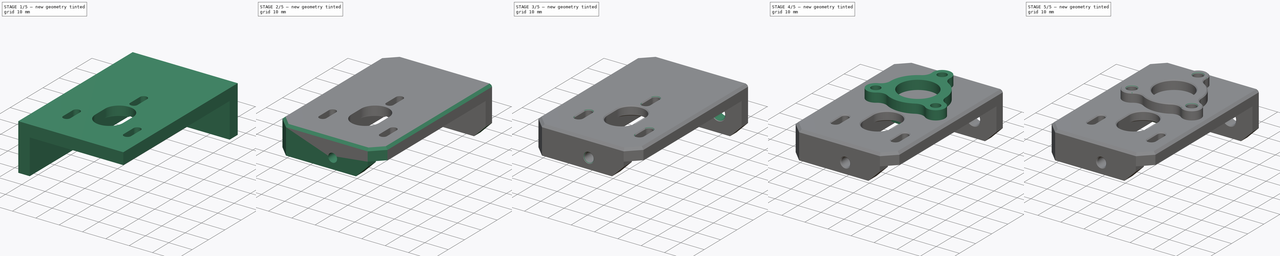
[diagram: build sequence overview — one tinted view per stage of 5, left to right]
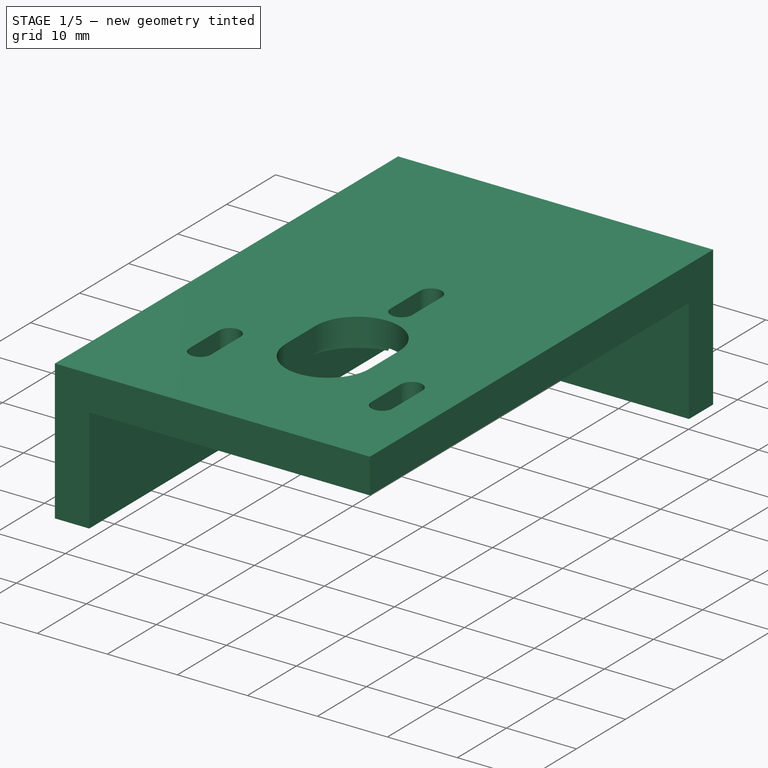
[diagram: stage 1 of 5 — iso view after this stage's code; geometry added in this stage tinted green]
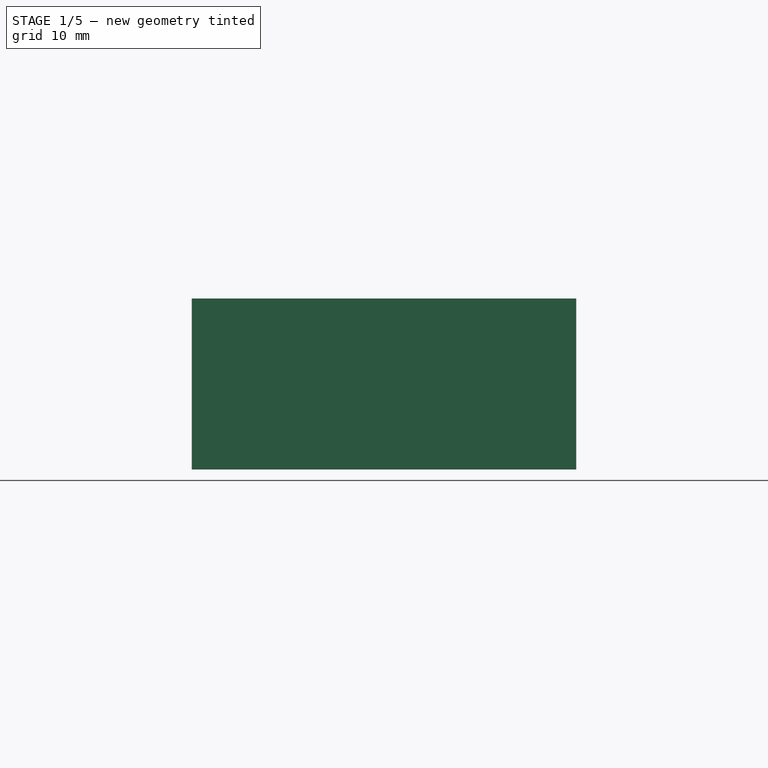
[diagram: stage 1 of 5 — front view after this stage's code; geometry added in this stage tinted green]
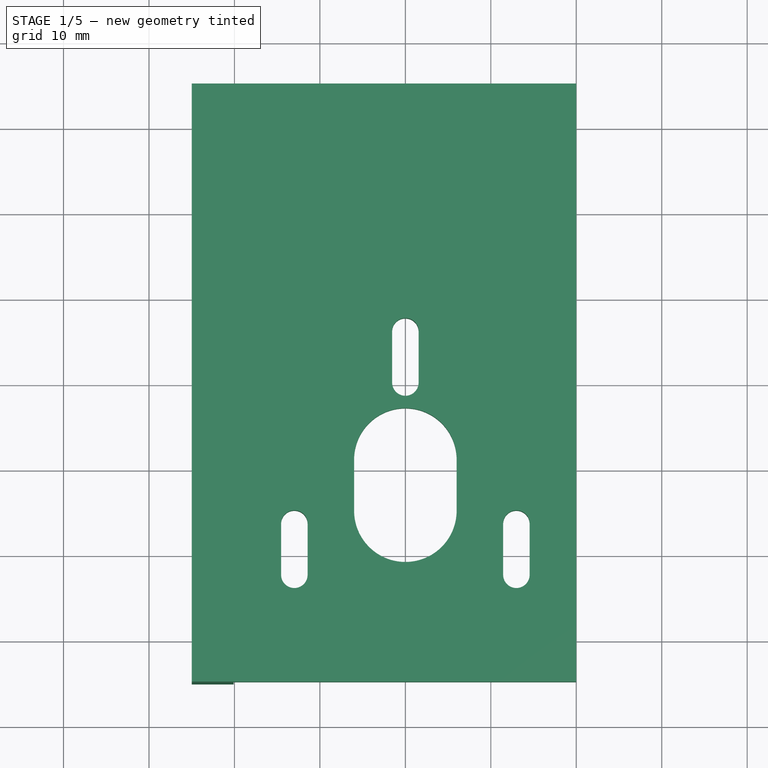
[diagram: stage 1 of 5 — top view after this stage's code; geometry added in this stage tinted green]
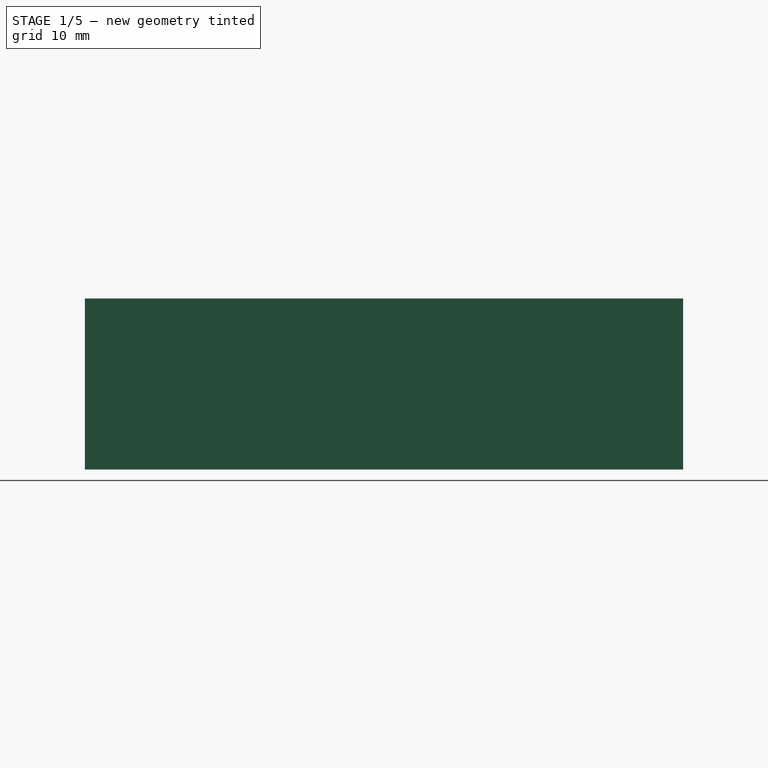
[diagram: stage 1 of 5 — right view after this stage's code; geometry added in this stage tinted green]
FCSTD DOCUMENT  (FreeCAD 0.19R24366 (Git))
Label: top-bearing-holder
License: All rights reserved
LicenseURL: http://en.wikipedia.org/wiki/All_rights_reserved
objects: Sketcher::SketchObject×13, PartDesign::Pocket×9, PartDesign::Chamfer×6, PartDesign::Pad×4, PartDesign::Body×2, PartDesign::Fillet×1, Part::FeaturePython×1, Part::Chamfer×1
note: 57 computed .brp shape members not serialized (recipe doc carries the construction recipe); baked Part::Feature solids carry a one-line shape summary decoded from their .brp

FEATURE [Sketcher::SketchObject] Sketch004
  FullyConstrained = true
  MapMode = 5
  Support = -> [XY_Plane001]
  sketch-geometry (4):
    g0: LineSegment StartX=-25 StartY=25 StartZ=0 EndX=20 EndY=25 EndZ=0
    g1: LineSegment StartX=20 StartY=25 StartZ=0 EndX=20 EndY=-45 EndZ=0
    g2: LineSegment StartX=20 StartY=-45 StartZ=0 EndX=-25 EndY=-45 EndZ=0
    g3: LineSegment StartX=-25 StartY=-45 StartZ=0 EndX=-25 EndY=25 EndZ=0
  constraints (12):
    c: Coincident(g0,g1)
    c: Coincident(g1,g2)
    c: Coincident(g2,g3)
    c: Coincident(g3,g0)
    c: Horizontal(g0)
    c: Horizontal(g2)
    c: Vertical(g1)
    c: Vertical(g3)
    c: DistanceX(g0,g0) = 45
    c: DistanceX(g0,g-1) = 25
    c: DistanceY(g-1,g0) = 25
    c: DistanceY(g3,g3) = 70
FEATURE [PartDesign::Pad] Pad001
  Direction = (1,1,1)
  Length = 5
  Length2 = 100
  Profile = -> Sketch004
  Type = 0
FEATURE [Sketcher::SketchObject] Sketch005
  FullyConstrained = true
  MapMode = 5
  Placement = pos=(0,0,0) rot=(1,0,0;3.14159rad)
  Support = -> [Pad001]
  sketch-geometry (21):
    g0: GeomPoint X=0 Y=22 Z=0
    g1: Circle CenterX=0 CenterY=22 CenterZ=0 NormalX=0 NormalY=0 NormalZ=1 AngleXU=0 Radius=15
    g2: LineSegment StartX=0 StartY=22 StartZ=0 EndX=-12.9904 EndY=29.5 EndZ=0
    g3: LineSegment StartX=0 StartY=22 StartZ=0 EndX=12.9904 EndY=29.5 EndZ=0
    g4: LineSegment StartX=0 StartY=22 StartZ=0 EndX=0 EndY=7 EndZ=0
    g5: ArcOfCircle CenterX=-12.9904 CenterY=32.5 CenterZ=0 NormalX=0 NormalY=0 NormalZ=1 AngleXU=0 Radius=1.55 StartAngle=-1.8e-15 EndAngle=3.14159
    g6: ArcOfCircle CenterX=-12.9904 CenterY=26.5 CenterZ=0 NormalX=0 NormalY=0 NormalZ=1 AngleXU=0 Radius=1.55 StartAngle=3.14159 EndAngle=6.28319
    g7: LineSegment StartX=-14.5404 StartY=32.5 StartZ=0 EndX=-14.5404 EndY=26.5 EndZ=0
    g8: LineSegment StartX=-11.4404 StartY=32.5 StartZ=0 EndX=-11.4404 EndY=26.5 EndZ=0
    g9: ArcOfCircle CenterX=12.9904 CenterY=32.5 CenterZ=0 NormalX=0 NormalY=0 NormalZ=1 AngleXU=0 Radius=1.55 StartAngle=2.1e-15 EndAngle=3.14159
    g10: ArcOfCircle CenterX=12.9904 CenterY=26.5 CenterZ=0 NormalX=0 NormalY=0 NormalZ=1 AngleXU=0 Radius=1.55 StartAngle=3.14159 EndAngle=6.28319
    g11: LineSegment StartX=11.4404 StartY=32.5 StartZ=0 EndX=11.4404 EndY=26.5 EndZ=0
    g12: LineSegment StartX=14.5404 StartY=32.5 StartZ=0 EndX=14.5404 EndY=26.5 EndZ=0
    g13: ArcOfCircle CenterX=0 CenterY=10 CenterZ=0 NormalX=0 NormalY=0 NormalZ=1 AngleXU=0 Radius=1.55 StartAngle=4e-16 EndAngle=3.14159
    g14: ArcOfCircle CenterX=2e-16 CenterY=4 CenterZ=0 NormalX=0 NormalY=0 NormalZ=1 AngleXU=0 Radius=1.55 StartAngle=3.14159 EndAngle=6.28319
    g15: LineSegment StartX=-1.55 StartY=10 StartZ=0 EndX=-1.55 EndY=4 EndZ=0
    g16: LineSegment StartX=1.55 StartY=10 StartZ=0 EndX=1.55 EndY=4 EndZ=0
    g17: ArcOfCircle CenterX=0 CenterY=25 CenterZ=0 NormalX=0 NormalY=0 NormalZ=1 AngleXU=0 Radius=6 StartAngle=0 EndAngle=3.14159
    g18: ArcOfCircle CenterX=2e-16 CenterY=19 CenterZ=0 NormalX=0 NormalY=0 NormalZ=1 AngleXU=0 Radius=6 StartAngle=3.14159 EndAngle=6.28319
    g19: LineSegment StartX=-6 StartY=25 StartZ=0 EndX=-6 EndY=19 EndZ=0
    g20: LineSegment StartX=6 StartY=25 StartZ=0 EndX=6 EndY=19 EndZ=0
  constraints (53):
    c: PointOnObject(g0,g-2)
    c: DistanceY(g-1,g0) = 22
    c: Coincident(g1,g0)
    c: Radius(g1) = 15
    c: Coincident(g2,g0)
    c: PointOnObject(g2,g1)
    c: Coincident(g3,g0)
    c: PointOnObject(g3,g1)
    c: Coincident(g4,g0)
    c: PointOnObject(g4,g1)
    c: Vertical(g4)
    c: Angle(g2,g4) = 2.0944
    c: Angle(g4,g3) = 2.0944
    c: Tangent(g5,g8) = 1.5708
    c: Tangent(g5,g7) = -1.5708
    c: Tangent(g7,g6) = -1.5708
    c: Tangent(g8,g6) = 1.5708
    c: Vertical(g7)
    c: Equal(g5,g6)
    c: Tangent(g9,g12) = 1.5708
    c: Tangent(g9,g11) = -1.5708
    c: Tangent(g11,g10) = -1.5708
    c: Tangent(g12,g10) = 1.5708
    c: Vertical(g11)
    c: Equal(g9,g10)
    c: Tangent(g13,g16) = 1.5708
    c: Tangent(g13,g15) = -1.5708
    c: Tangent(g15,g14) = -1.5708
    c: Tangent(g16,g14) = 1.5708
    c: Vertical(g15)
    c: Equal(g13,g14)
    c: Tangent(g17,g20) = 1.5708
    c: Tangent(g17,g19) = -1.5708
    c: Tangent(g19,g18) = -1.5708
    c: Tangent(g20,g18) = 1.5708
    c: Vertical(g19)
    c: Equal(g17,g18)
    c: Vertical(g13,g4)
    c: Vertical(g5,g2)
    c: Vertical(g9,g3)
    c: Equal(g5,g9)
    c: Equal(g9,g13)
    c: Vertical(g17,g0)
    c: DistanceY(g2,g5) = 3
    c: DistanceY(g6,g2) = 3
    c: DistanceY(g3,g9) = 3
    c: DistanceY(g10,g3) = 3
    c: DistanceY(g0,g17) = 3
    c: DistanceY(g18,g0) = 3
    c: DistanceY(g4,g13) = 3
    c: DistanceY(g14,g4) = 3
    c: Radius(g5) = 1.55
    c: Radius(g17) = 6
FEATURE [PartDesign::Pocket] Pocket003
  BaseFeature = -> Pad001
  Length = 5
  Length2 = 100
  Profile = -> Sketch005
  Type = 1
FEATURE [Sketcher::SketchObject] Sketch006
  FullyConstrained = true
  MapMode = 5
  Placement = pos=(0,0,0) rot=(1,0,0;3.14159rad)
  Support = -> [Pocket003]
  sketch-geometry (5):
    g0: GeomPoint X=0 Y=22 Z=0
    g1: ArcOfCircle CenterX=0 CenterY=25 CenterZ=0 NormalX=0 NormalY=0 NormalZ=1 AngleXU=0 Radius=8.1 StartAngle=-2.04e-14 EndAngle=3.14159
    g2: ArcOfCircle CenterX=9e-16 CenterY=19 CenterZ=0 NormalX=0 NormalY=0 NormalZ=1 AngleXU=0 Radius=8.1 StartAngle=3.14159 EndAngle=6.28319
    g3: LineSegment StartX=-8.1 StartY=25 StartZ=0 EndX=-8.1 EndY=19 EndZ=0
    g4: LineSegment StartX=8.1 StartY=25 StartZ=0 EndX=8.1 EndY=19 EndZ=0
  constraints (12):
    c: PointOnObject(g0,g-2)
    c: DistanceY(g-1,g0) = 22
    c: Tangent(g1,g4) = 1.5708
    c: Tangent(g1,g3) = -1.5708
    c: Tangent(g3,g2) = -1.5708
    c: Tangent(g4,g2) = 1.5708
    c: Vertical(g3)
    c: Equal(g1,g2)
    c: Vertical(g0,g1)
    c: Radius(g1) = 8.1
    c: DistanceY(g0,g1) = 3
    c: DistanceY(g2,g0) = 3
FEATURE [PartDesign::Pocket] Pocket004
  BaseFeature = -> Pocket003
  Length = 1.5
  Length2 = 100
  Profile = -> Sketch006
  Type = 0
FEATURE [Sketcher::SketchObject] Sketch007
  ExternalGeometry = -> [Pocket004]
  FullyConstrained = true
  MapMode = 5
  Placement = pos=(0,0,0) rot=(1,0,0;3.14159rad)
  Support = -> [Pocket004]
  sketch-geometry (6):
    g0: LineSegment StartX=-25 StartY=45 StartZ=0 EndX=-20.1 EndY=45 EndZ=0
    g1: LineSegment StartX=-20.1 StartY=45 StartZ=0 EndX=-20.1 EndY=-20.1 EndZ=0
    g2: LineSegment StartX=-20.1 StartY=-20.1 StartZ=0 EndX=20 EndY=-20.1 EndZ=0
    g3: LineSegment StartX=20 StartY=-20.1 StartZ=0 EndX=20 EndY=-25 EndZ=0
    g4: LineSegment StartX=20 StartY=-25 StartZ=0 EndX=-25 EndY=-25 EndZ=0
    g5: LineSegment StartX=-25 StartY=-25 StartZ=0 EndX=-25 EndY=45 EndZ=0
  constraints (15):
    c: Coincident(g-3,g0)
    c: Horizontal(g0)
    c: Coincident(g0,g1)
    c: Vertical(g1)
    c: Coincident(g1,g2)
    c: Horizontal(g2)
    c: Coincident(g2,g3)
    c: Coincident(g3,g-4)
    c: Vertical(g3)
    c: Coincident(g3,g4)
    c: Coincident(g4,g-4)
    c: Coincident(g4,g5)
    c: Coincident(g5,g0)
    c: DistanceX(g0,g0) = 4.9
    c: DistanceY(g3,g3) = 4.9
FEATURE [PartDesign::Pad] Pad002
  BaseFeature = -> Pocket004
  Direction = (1,1,1)
  Length = 15
  Length2 = 100
  Profile = -> Sketch007
  Type = 0
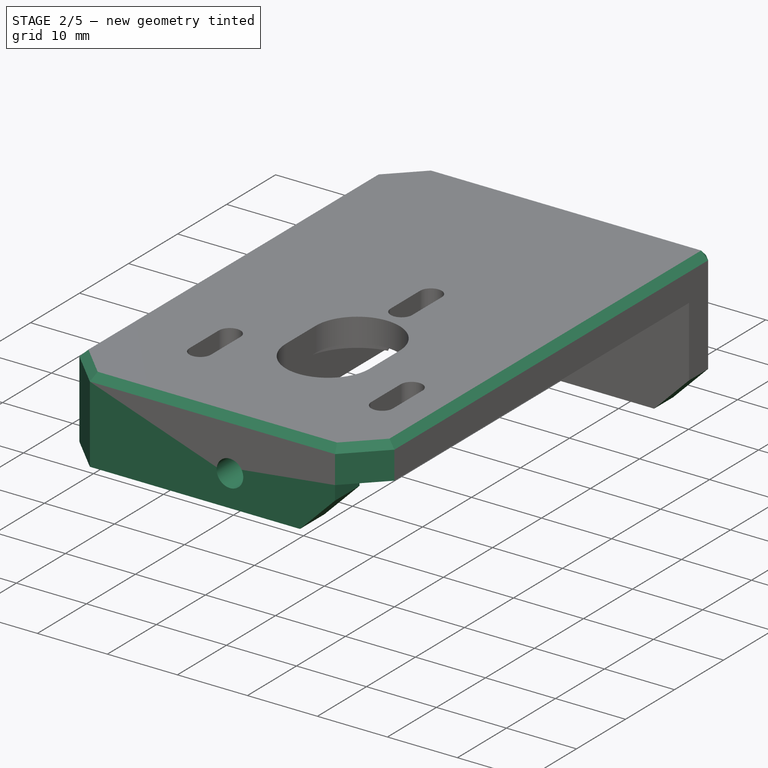
[diagram: stage 2 of 5 — iso view after this stage's code; geometry added in this stage tinted green]
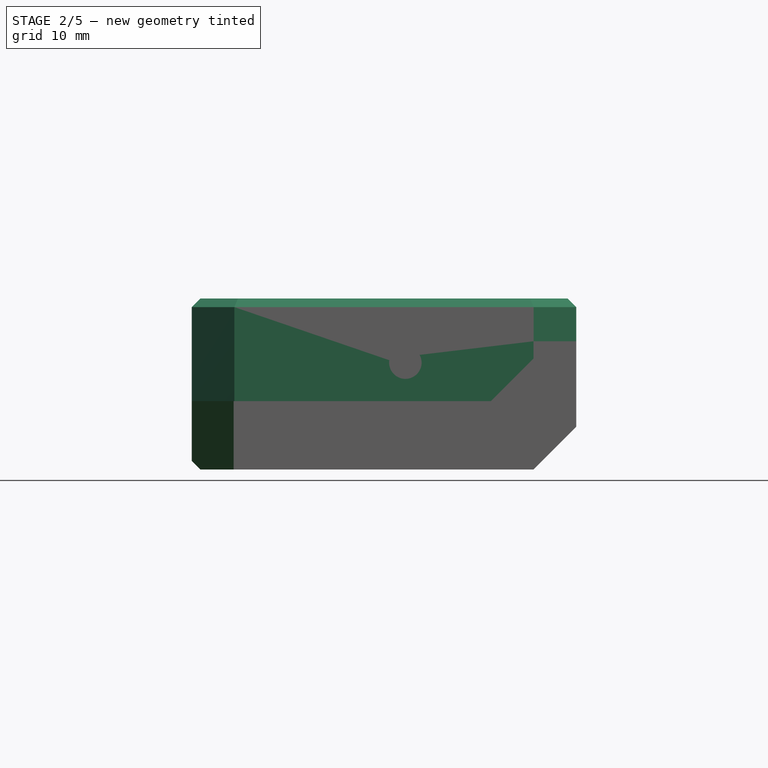
[diagram: stage 2 of 5 — front view after this stage's code; geometry added in this stage tinted green]
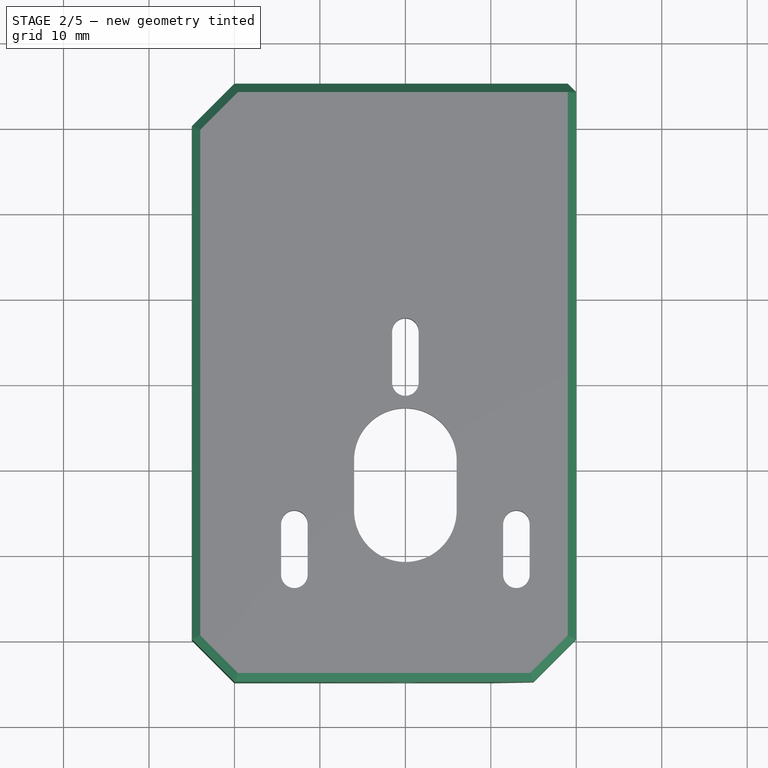
[diagram: stage 2 of 5 — top view after this stage's code; geometry added in this stage tinted green]
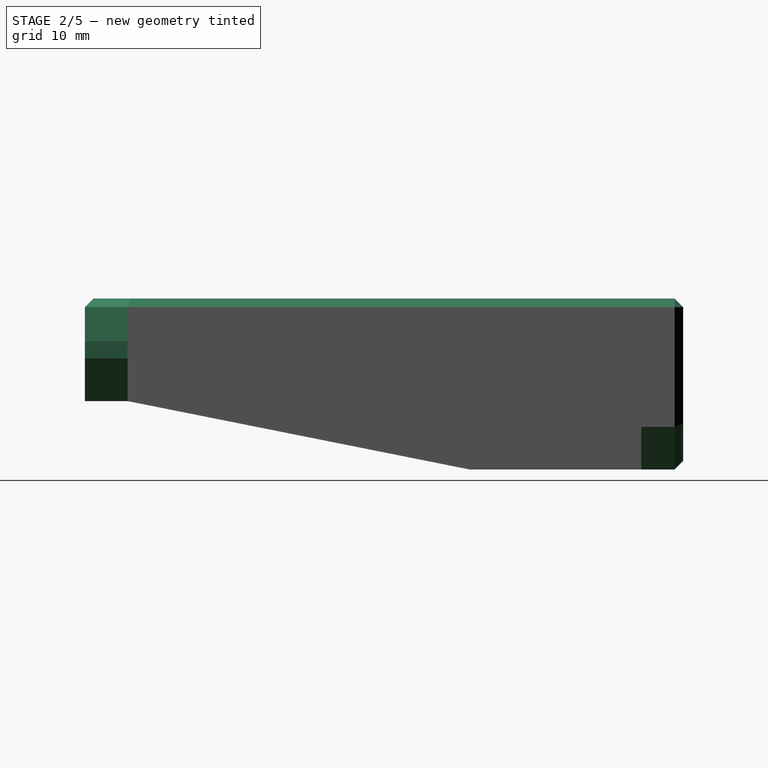
[diagram: stage 2 of 5 — right view after this stage's code; geometry added in this stage tinted green]
FEATURE [Sketcher::SketchObject] Sketch008
  ExternalGeometry = -> [Pad002]
  FullyConstrained = true
  MapMode = 5
  Placement = pos=(0,0,0) rot=(1,0,0;3.14159rad)
  Support = -> [Pad002]
  sketch-geometry (4):
    g0: LineSegment StartX=-20.1 StartY=45 StartZ=0 EndX=15 EndY=45 EndZ=0
    g1: LineSegment StartX=15 StartY=45 StartZ=0 EndX=15 EndY=40 EndZ=0
    g2: LineSegment StartX=15 StartY=40 StartZ=0 EndX=-20.1 EndY=40 EndZ=0
    g3: LineSegment StartX=-20.1 StartY=40 StartZ=0 EndX=-20.1 EndY=45 EndZ=0
  constraints (11):
    c: Coincident(g0,g1)
    c: Coincident(g1,g2)
    c: Coincident(g2,g3)
    c: Coincident(g3,g0)
    c: Horizontal(g0)
    c: Horizontal(g2)
    c: Vertical(g1)
    c: Vertical(g3)
    c: Coincident(g0,g-4)
    c: DistanceY(g1,g1) = 5
    c: DistanceX(g0,g-3) = 5
FEATURE [PartDesign::Pad] Pad003
  BaseFeature = -> Pad002
  Direction = (1,1,1)
  Length = 15
  Length2 = 100
  Profile = -> Sketch008
  Type = 0
FEATURE [Sketcher::SketchObject] Sketch009
  ExternalGeometry = -> [Pad003]
  FullyConstrained = true
  MapMode = 5
  Placement = pos=(-25,2.5e-15,0) rot=(-0.57735,0.57735,0.57735;4.18879rad)
  Support = -> [Pad003]
  sketch-geometry (4):
    g0: LineSegment StartX=45 StartY=-7 StartZ=0 EndX=45 EndY=-15 EndZ=0
    g1: LineSegment StartX=45 StartY=-15 StartZ=0 EndX=0 EndY=-15 EndZ=0
    g2: LineSegment StartX=45 StartY=-7 StartZ=0 EndX=40 EndY=-7 EndZ=0
    g3: LineSegment StartX=40 StartY=-7 StartZ=0 EndX=0 EndY=-15 EndZ=0
  constraints (11):
    c: PointOnObject(g1,g-3)
    c: PointOnObject(g0,g-4)
    c: Coincident(g0,g-4)
    c: Coincident(g0,g1)
    c: DistanceY(g0,g-4) = 7
    c: Coincident(g0,g2)
    c: Coincident(g2,g3)
    c: Coincident(g3,g1)
    c: DistanceX(g2,g2) = 5
    c: Horizontal(g2)
    c: Vertical(g1,g-1)
FEATURE [PartDesign::Pocket] Pocket005
  BaseFeature = -> Pad003
  Length = 5
  Length2 = 100
  Profile = -> Sketch009
  Type = 1
FEATURE [PartDesign::Body] Body  label="bearing-housing"
  Group = -> [Sketch,Pad,Sketch001,Pocket,Sketch002,Pocket001,Sketch003,Pocket002,Fillet,Chamfer,Chamfer001]
  Origin = -> Origin
  Placement = pos=(0,-25,-6) rot=(0,0,1;0rad)
  Tip = -> Chamfer001
FEATURE [Sketcher::SketchObject] Sketch010
  FullyConstrained = true
  MapMode = 5
  Placement = pos=(0,-45,0) rot=(1,0,0;1.5708rad)
  Support = -> [Pocket005]
  sketch-geometry (1):
    g0: Circle CenterX=0 CenterY=-2.5 CenterZ=0 NormalX=0 NormalY=0 NormalZ=1 AngleXU=0 Radius=1.9
  constraints (3):
    c: PointOnObject(g0,g-2)
    c: DistanceY(g0,g-1) = 2.5
    c: Radius(g0) = 1.9
FEATURE [PartDesign::Pocket] Pocket006
  BaseFeature = -> Pocket005
  Length = 5
  Length2 = 100
  Profile = -> Sketch010
  Refine = true
  Type = 0
FEATURE [PartDesign::Chamfer] Chamfer009
  Angle = 45
  Base = -> Pocket006 [Edge101,Edge81,Edge100,Edge99,Edge73]
  BaseFeature = -> Pocket006
  ChamferType = 0
  FlipDirection = false
  Size = 4.99
  Size2 = 1
  SupportTransform = false
FEATURE [PartDesign::Chamfer] Chamfer010
  Angle = 45
  Base = -> Chamfer009 [Edge37,Edge102,Edge101,Edge105,Edge104,Edge39,Edge86,Edge87,Edge88,Edge34,Edge26,Edge89]
  BaseFeature = -> Chamfer009
  ChamferType = 0
  FlipDirection = false
  Size = 1
  Size2 = 1
  SupportTransform = false
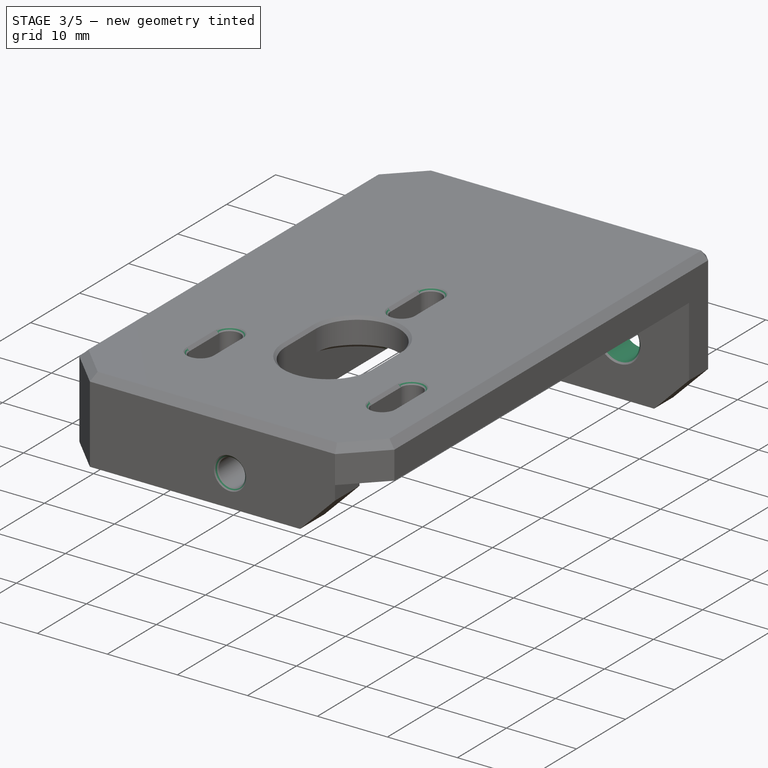
[diagram: stage 3 of 5 — iso view after this stage's code; geometry added in this stage tinted green]
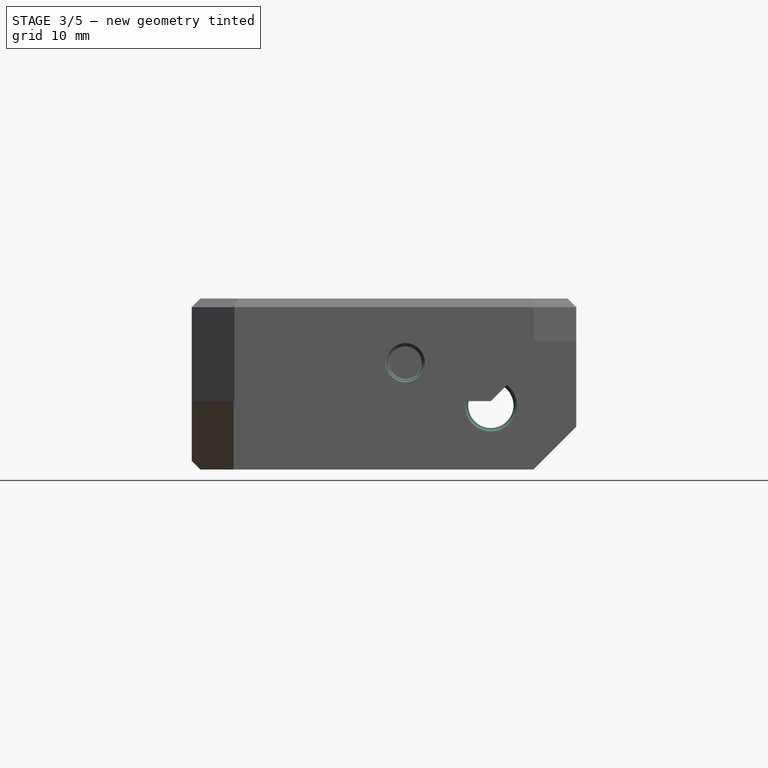
[diagram: stage 3 of 5 — front view after this stage's code; geometry added in this stage tinted green]
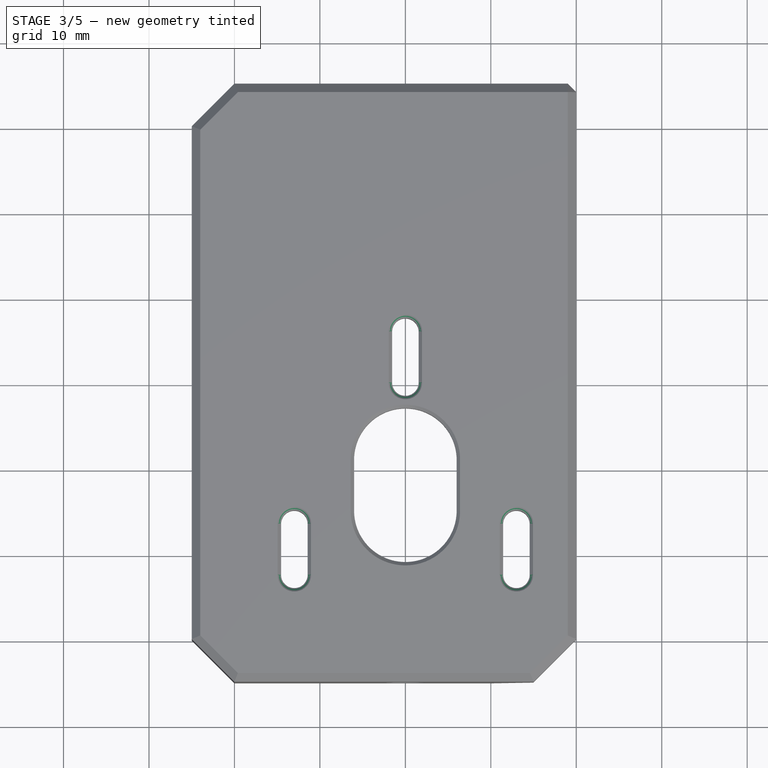
[diagram: stage 3 of 5 — top view after this stage's code; geometry added in this stage tinted green]
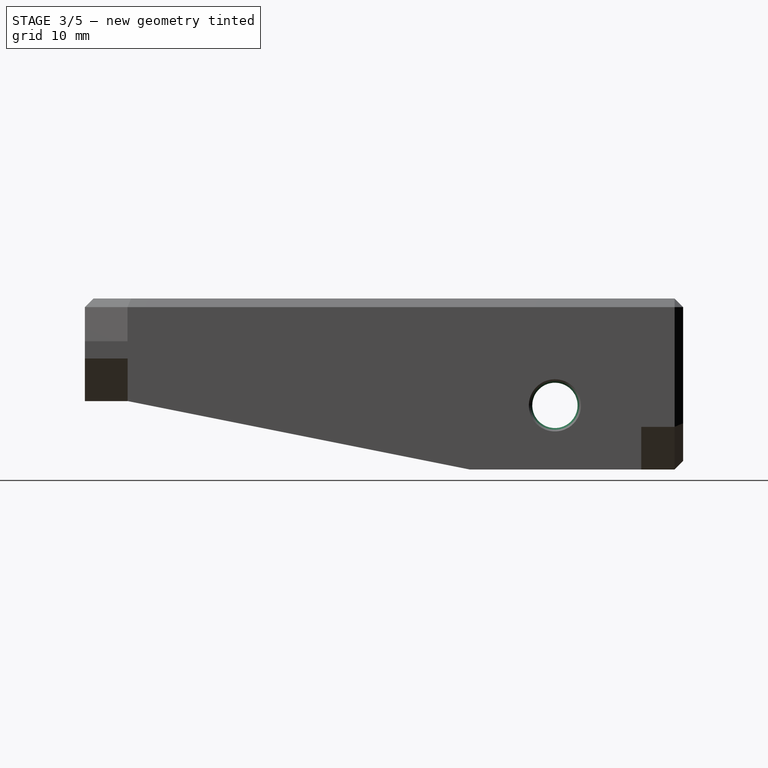
[diagram: stage 3 of 5 — right view after this stage's code; geometry added in this stage tinted green]
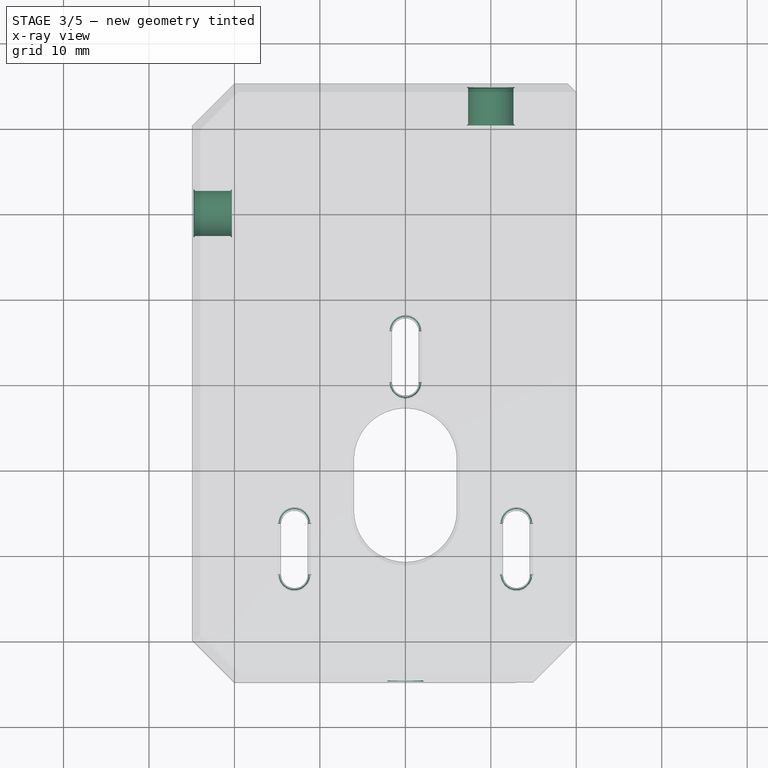
[diagram: stage 3 of 5 — x-ray composite at the top view; earlier geometry ghosted, this stage's added geometry solid]
FEATURE [PartDesign::Chamfer] Chamfer011
  Angle = 45
  Base = -> Chamfer010 [Edge62,Edge66,Edge70,Edge74,Edge25,Edge21,Edge29,Edge32,Edge8]
  BaseFeature = -> Chamfer010
  ChamferType = 0
  FlipDirection = false
  Size = 0.4
  Size2 = 1
  SupportTransform = false
FEATURE [Sketcher::SketchObject] Sketch011
  FullyConstrained = true
  MapMode = 5
  Placement = pos=(0,25,0) rot=(0,0.707107,0.707107;3.14159rad)
  Support = -> [Chamfer011]
  sketch-geometry (1):
    g0: Circle CenterX=-10 CenterY=-7.5 CenterZ=0 NormalX=0 NormalY=0 NormalZ=1 AngleXU=0 Radius=2.65
  constraints (3):
    c: Radius(g0) = 2.65
    c: DistanceY(g0,g-1) = 7.5
    c: DistanceX(g0,g-1) = 10
FEATURE [PartDesign::Pocket] Pocket007
  BaseFeature = -> Chamfer011
  Length = 5
  Length2 = 100
  Profile = -> Sketch011
  Type = 0
FEATURE [Sketcher::SketchObject] Sketch012
  FullyConstrained = true
  MapMode = 5
  Placement = pos=(-25,4e-16,-5.7e-15) rot=(-0.57735,0.57735,0.57735;4.18879rad)
  Support = -> [Pocket007]
  sketch-geometry (1):
    g0: Circle CenterX=-10 CenterY=-7.5 CenterZ=0 NormalX=0 NormalY=0 NormalZ=1 AngleXU=0 Radius=2.65
  constraints (3):
    c: DistanceX(g0,g-1) = 10
    c: DistanceY(g0,g-1) = 7.5
    c: Radius(g0) = 2.65
FEATURE [PartDesign::Pocket] Pocket008
  BaseFeature = -> Pocket007
  Length = 5
  Length2 = 100
  Profile = -> Sketch012
  Type = 0
FEATURE [PartDesign::Chamfer] Chamfer012
  Angle = 45
  Base = -> Pocket008 [Edge181,Edge128,Edge92,Edge95]
  BaseFeature = -> Pocket008
  ChamferType = 0
  FlipDirection = false
  Size = 0.4
  Size2 = 1
  SupportTransform = false
FEATURE [PartDesign::Body] Body001
  Group = -> [Sketch004,Pad001,Sketch005,Pocket003,Sketch006,Pocket004,Sketch007,Pad002,Sketch008,Pad003,Sketch009,Pocket005,Sketch010,Pocket006,Chamfer009,Chamfer010,Chamfer011,Sketch011,Pocket007,Sketch012,Pocket008,Chamfer012]
  Origin = -> Origin001
  Tip = -> Chamfer012
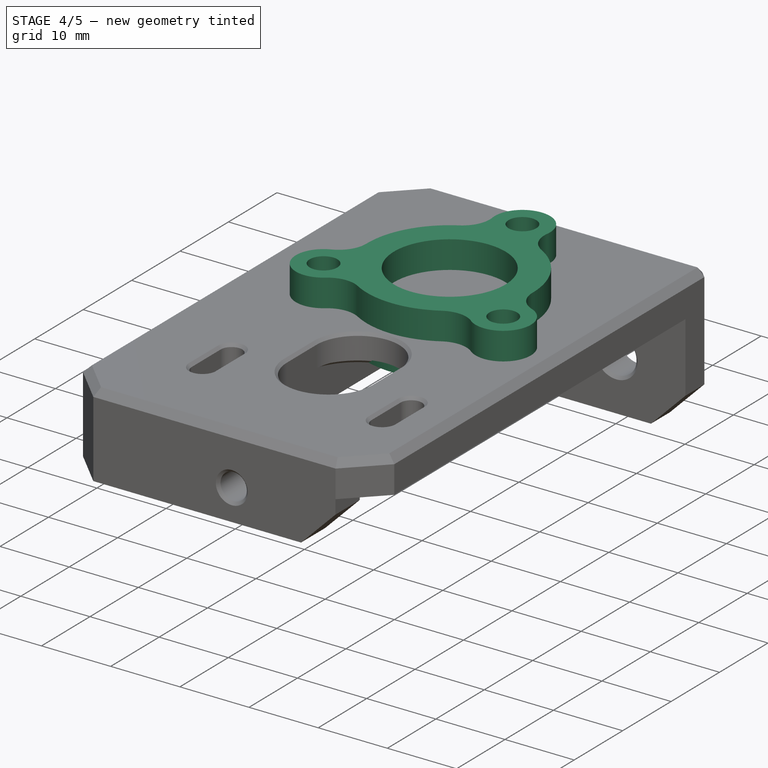
[diagram: stage 4 of 5 — iso view after this stage's code; geometry added in this stage tinted green]
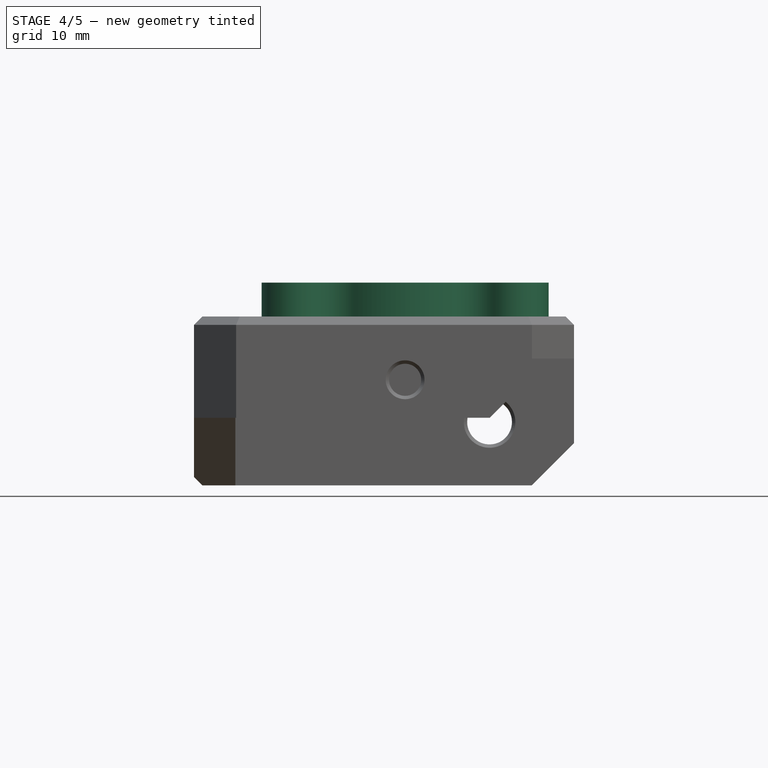
[diagram: stage 4 of 5 — front view after this stage's code; geometry added in this stage tinted green]
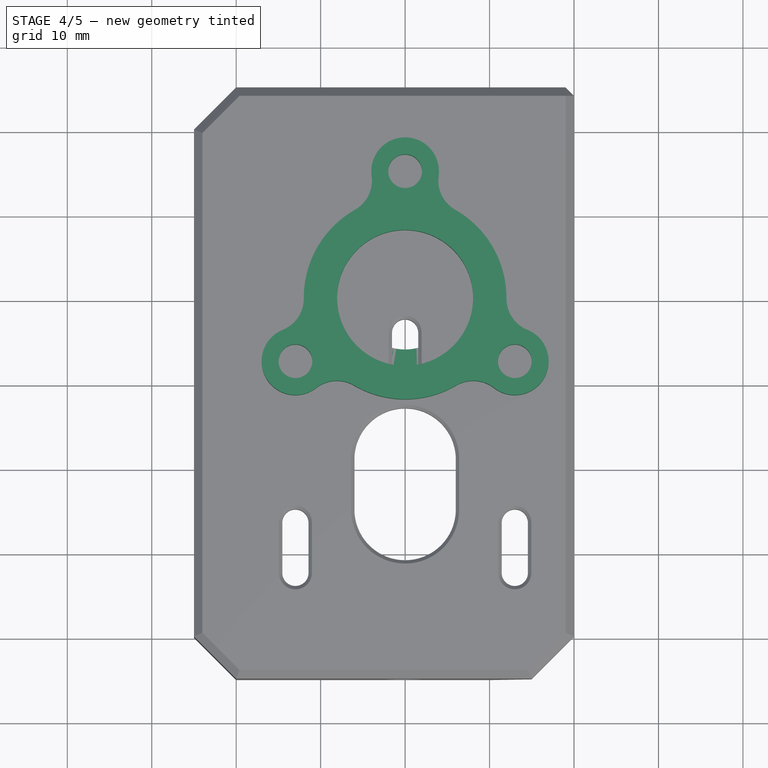
[diagram: stage 4 of 5 — top view after this stage's code; geometry added in this stage tinted green]
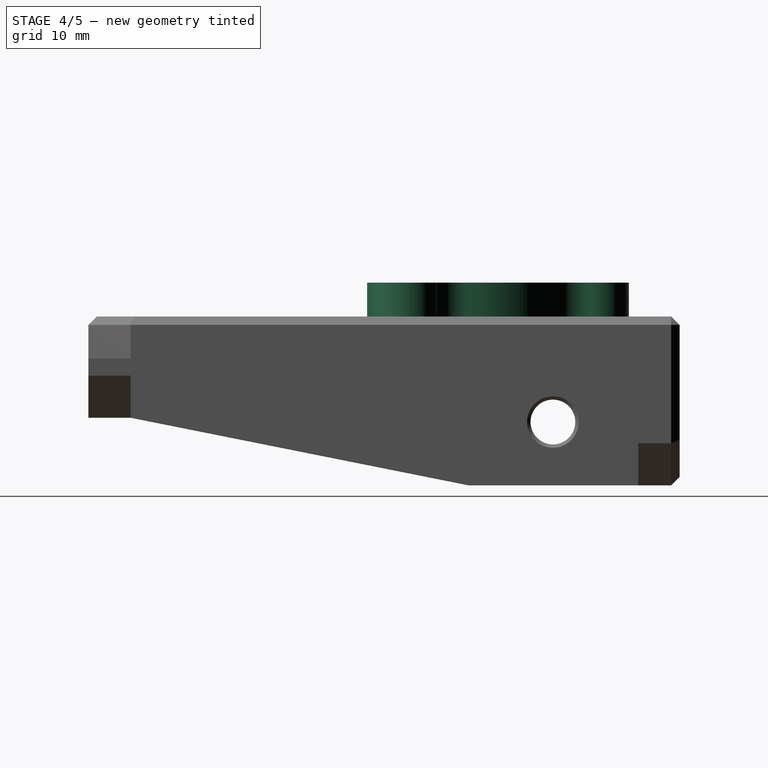
[diagram: stage 4 of 5 — right view after this stage's code; geometry added in this stage tinted green]
FEATURE [Sketcher::SketchObject] Sketch
  FullyConstrained = true
  MapMode = 5
  Support = -> [XY_Plane]
  sketch-geometry (11):
    g0: Circle CenterX=0 CenterY=0 CenterZ=0 NormalX=0 NormalY=0 NormalZ=1 AngleXU=0 Radius=8
    g1: LineSegment StartX=0 StartY=0 StartZ=0 EndX=-12.9904 EndY=-7.5 EndZ=0
    g2: LineSegment StartX=0 StartY=0 StartZ=0 EndX=12.9904 EndY=-7.5 EndZ=0
    g3: Circle CenterX=0 CenterY=0 CenterZ=0 NormalX=0 NormalY=0 NormalZ=1 AngleXU=0 Radius=15
    g4: ArcOfCircle CenterX=0 CenterY=15 CenterZ=0 NormalX=0 NormalY=0 NormalZ=1 AngleXU=0 Radius=4 StartAngle=5.34187 EndAngle=10.3661
    g5: ArcOfCircle CenterX=-12.9904 CenterY=-7.5 CenterZ=0 NormalX=0 NormalY=0 NormalZ=1 AngleXU=0 Radius=4 StartAngle=1.15308 EndAngle=6.1773
    g6: ArcOfCircle CenterX=12.9904 CenterY=-7.5 CenterZ=0 NormalX=0 NormalY=0 NormalZ=1 AngleXU=0 Radius=4 StartAngle=3.24747 EndAngle=8.2717
    g7: LineSegment StartX=0 StartY=15 StartZ=0 EndX=0 EndY=0 EndZ=0
    g8: ArcOfCircle CenterX=0 CenterY=0 CenterZ=0 NormalX=0 NormalY=0 NormalZ=1 AngleXU=0 Radius=12 StartAngle=1.76832 EndAngle=3.46767
    g9: ArcOfCircle CenterX=0 CenterY=0 CenterZ=0 NormalX=0 NormalY=0 NormalZ=1 AngleXU=0 Radius=12 StartAngle=3.86272 EndAngle=5.56206
    g10: ArcOfCircle CenterX=0 CenterY=0 CenterZ=0 NormalX=0 NormalY=0 NormalZ=1 AngleXU=0 Radius=12 StartAngle=5.95711 EndAngle=7.65646
  constraints (31):
    c: Coincident(g0,g-1)
    c: Radius(g0) = 8
    c: Coincident(g1,g-1)
    c: Coincident(g2,g-1)
    c: Angle(g-2,g1) = 2.0944
    c: Angle(g2,g-2) = 2.0944
    c: Coincident(g3,g-1)
    c: PointOnObject(g1,g3)
    c: PointOnObject(g2,g3)
    c: PointOnObject(g4,g3)
    c: Coincident(g5,g1)
    c: Coincident(g6,g2)
    c: Coincident(g7,g4)
    c: Coincident(g7,g-1)
    c: Vertical(g7)
    c: Equal(g5,g6)
    c: Equal(g6,g4)
    c: Coincident(g8,g-1)
    c: Radius(g8) = 12
    c: Radius(g4) = 4
    c: Radius(g3) = 15
    c: Coincident(g4,g8)
    c: Coincident(g4,g10)
    c: Equal(g8,g9)
    c: Coincident(g8,g9)
    c: Coincident(g8,g5)
    c: Coincident(g5,g9)
    c: Equal(g9,g10)
    c: Coincident(g9,g10)
    c: Coincident(g6,g9)
    c: Coincident(g10,g6)
FEATURE [PartDesign::Pad] Pad
  Direction = (1,1,1)
  Length = 9
  Length2 = 100
  Profile = -> Sketch
  Type = 0
FEATURE [Sketcher::SketchObject] Sketch001
  FullyConstrained = true
  MapMode = 5
  Placement = pos=(0,0,9) rot=(0,0,1;0rad)
  Support = -> [Pad]
  sketch-geometry (7):
    g0: Circle CenterX=0 CenterY=1e-16 CenterZ=0 NormalX=0 NormalY=0 NormalZ=1 AngleXU=0 Radius=15
    g1: LineSegment StartX=0 StartY=0 StartZ=0 EndX=0 EndY=15 EndZ=0
    g2: LineSegment StartX=0 StartY=0 StartZ=0 EndX=-12.9904 EndY=-7.5 EndZ=0
    g3: LineSegment StartX=0 StartY=0 StartZ=0 EndX=12.9904 EndY=-7.5 EndZ=0
    g4: Circle CenterX=0 CenterY=15 CenterZ=0 NormalX=0 NormalY=0 NormalZ=1 AngleXU=0 Radius=2
    g5: Circle CenterX=-12.9904 CenterY=-7.5 CenterZ=0 NormalX=0 NormalY=0 NormalZ=1 AngleXU=0 Radius=2
    g6: Circle CenterX=12.9904 CenterY=-7.5 CenterZ=0 NormalX=0 NormalY=0 NormalZ=1 AngleXU=0 Radius=2
  constraints (17):
    c: Coincident(g0,g-1)
    c: Coincident(g1,g-1)
    c: PointOnObject(g1,g0)
    c: Coincident(g2,g-1)
    c: PointOnObject(g2,g0)
    c: Coincident(g3,g-1)
    c: PointOnObject(g3,g0)
    c: Radius(g0) = 15
    c: Vertical(g1)
    c: Angle(g1,g2) = 2.0944
    c: Angle(g3,g1) = 2.0944
    c: Coincident(g4,g1)
    c: Coincident(g5,g2)
    c: Coincident(g6,g3)
    c: Equal(g5,g6)
    c: Equal(g6,g4)
    c: Radius(g4) = 2
FEATURE [PartDesign::Pocket] Pocket
  BaseFeature = -> Pad
  Length = 5
  Length2 = 100
  Profile = -> Sketch001
  Type = 1
FEATURE [Sketcher::SketchObject] Sketch002
  FullyConstrained = true
  MapMode = 5
  Placement = pos=(0,0,9) rot=(0,0,1;0rad)
  Support = -> [Pocket]
  sketch-geometry (1):
    g0: Circle CenterX=0 CenterY=0 CenterZ=0 NormalX=0 NormalY=0 NormalZ=1 AngleXU=0 Radius=8.05
  constraints (2):
    c: Coincident(g0,g-1)
    c: Radius(g0) = 8.05
FEATURE [PartDesign::Pocket] Pocket001
  BaseFeature = -> Pocket
  Length = 7
  Length2 = 100
  Profile = -> Sketch002
  Type = 0
FEATURE [Sketcher::SketchObject] Sketch003
  FullyConstrained = true
  MapMode = 5
  Placement = pos=(0,0,2) rot=(0,0,1;0rad)
  Support = -> [Pocket001]
  sketch-geometry (1):
    g0: Circle CenterX=0 CenterY=0 CenterZ=0 NormalX=0 NormalY=0 NormalZ=1 AngleXU=0 Radius=6
  constraints (2):
    c: Coincident(g0,g-1)
    c: Radius(g0) = 6
FEATURE [PartDesign::Pocket] Pocket002
  BaseFeature = -> Pocket001
  Length = 5
  Length2 = 100
  Profile = -> Sketch003
  Type = 1
FEATURE [PartDesign::Fillet] Fillet
  Base = -> Pocket002 [Edge26,Edge25,Edge5,Edge1,Edge2,Edge8]
  BaseFeature = -> Pocket002
  Radius = 4
  SupportTransform = false
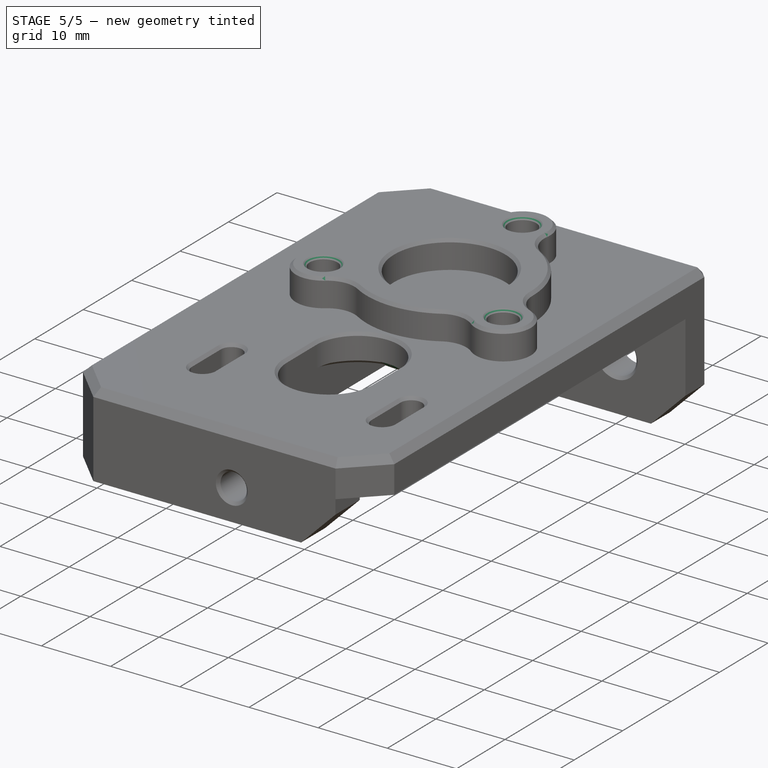
[diagram: stage 5 of 5 — iso view after this stage's code; geometry added in this stage tinted green]
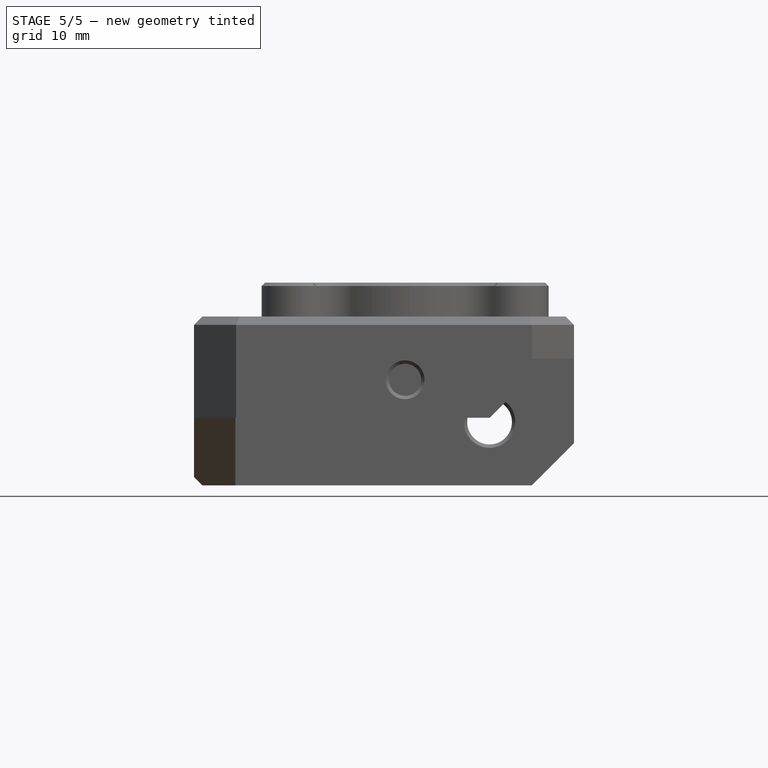
[diagram: stage 5 of 5 — front view after this stage's code; geometry added in this stage tinted green]
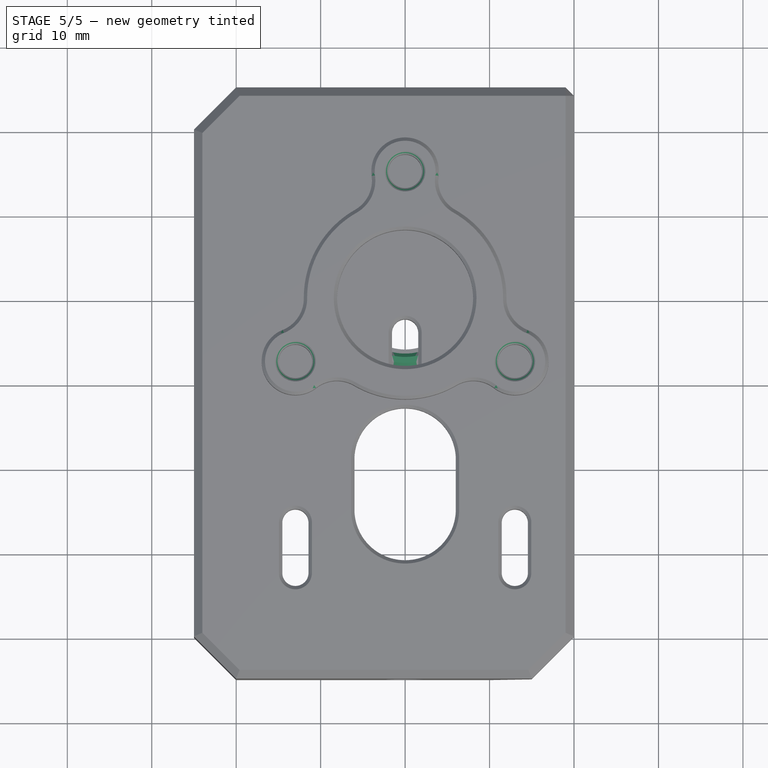
[diagram: stage 5 of 5 — top view after this stage's code; geometry added in this stage tinted green]
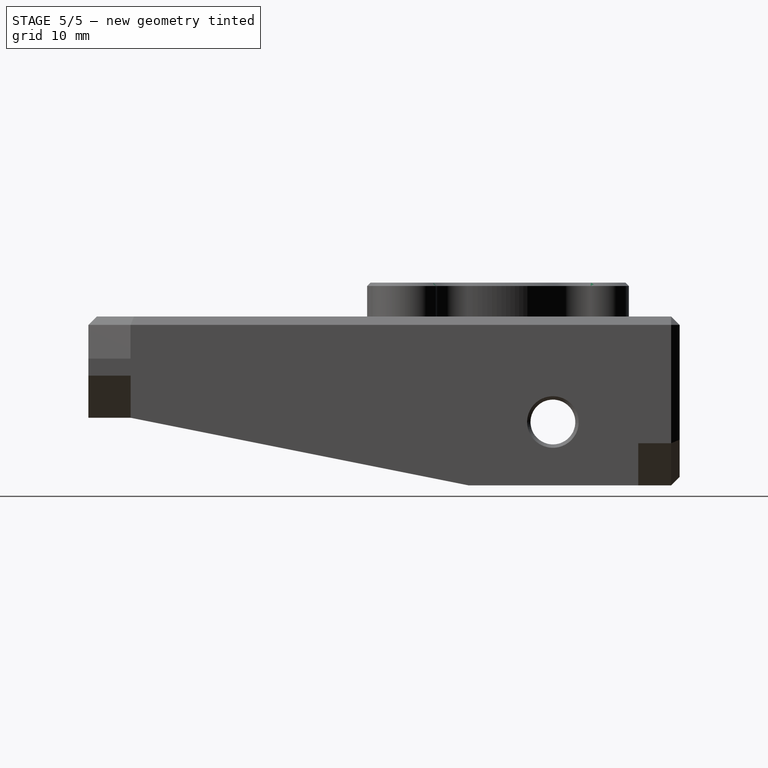
[diagram: stage 5 of 5 — right view after this stage's code; geometry added in this stage tinted green]
FEATURE [PartDesign::Chamfer] Chamfer
  Angle = 45
  Base = -> Fillet [Face5,Edge16,Edge19,Edge17]
  BaseFeature = -> Fillet
  ChamferType = 0
  FlipDirection = false
  Size = 0.4
  Size2 = 1
  SupportTransform = false
FEATURE [Part::FeaturePython] Tube  # WARN: FeaturePython — macro-defined, semantics opaque (R4)
  AttacherType = Attacher::AttachEngine3D
  Height = 3.3
  InnerRadius = 6.5
  OuterRadius = 8
FEATURE [Part::Chamfer] Chamfer008
  Base = -> Tube
  Edges = 4 edges r=0.4: [Edge1,Edge3,Edge4,Edge5]
FEATURE [PartDesign::Chamfer] Chamfer001
  Angle = 45
  Base = -> Chamfer [Edge14,Edge22]
  BaseFeature = -> Chamfer
  ChamferType = 0
  FlipDirection = false
  Size = 1
  Size2 = 1
  SupportTransform = false
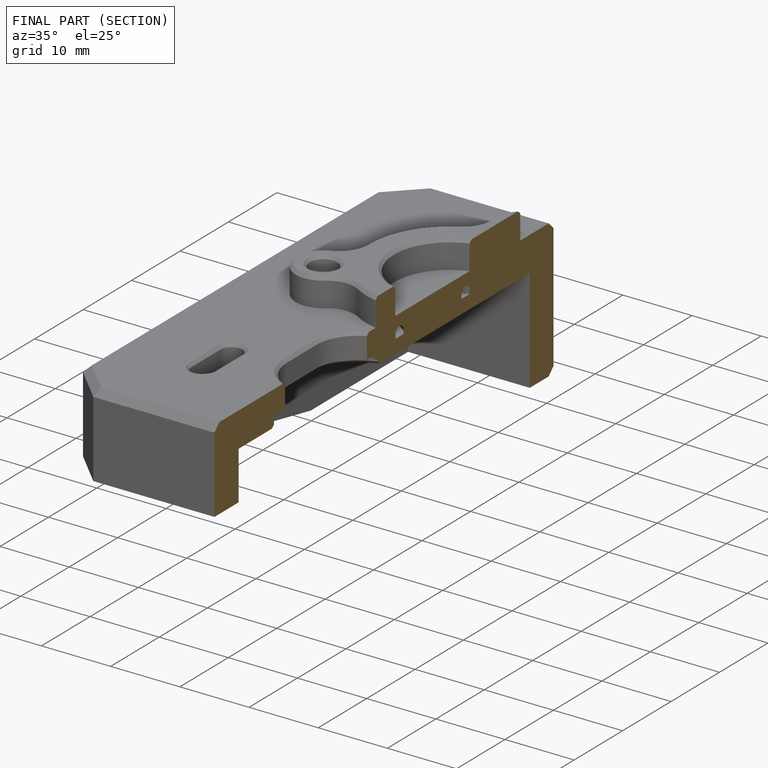
[diagram: finished part — half-section view (interior)]
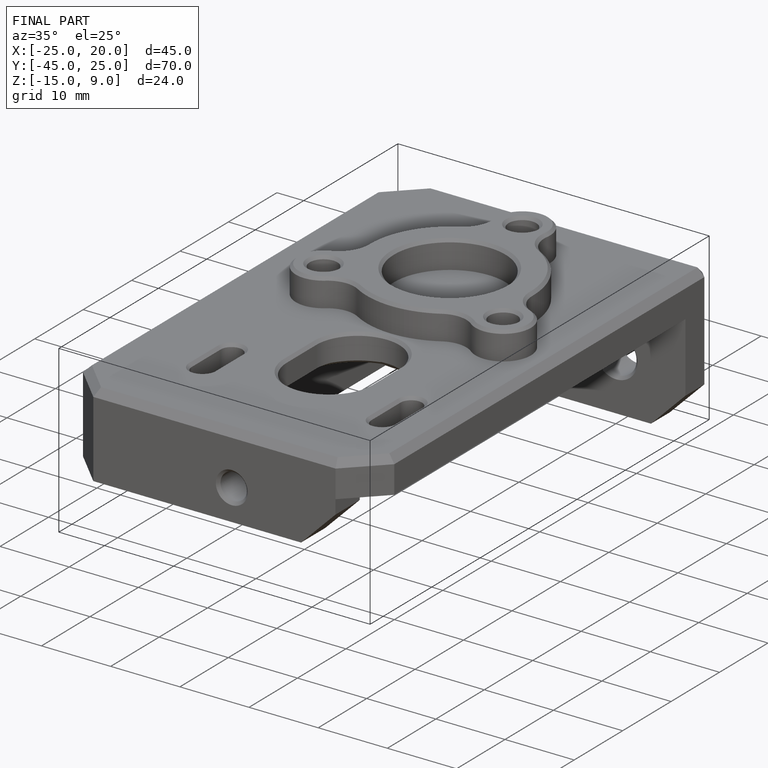
[diagram: finished part — iso view with bounding-box wireframe]
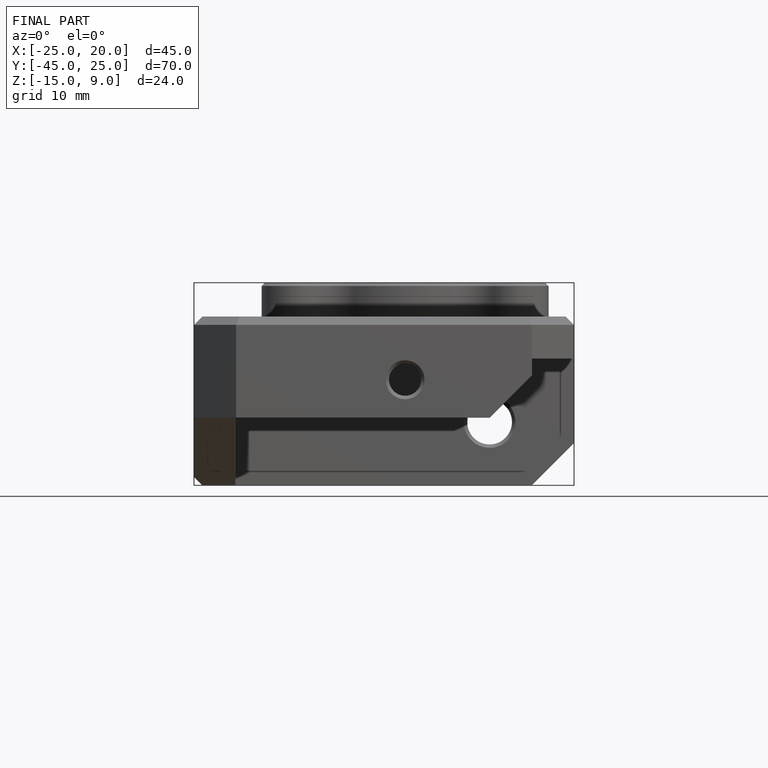
[diagram: finished part — front view with bounding-box wireframe]
